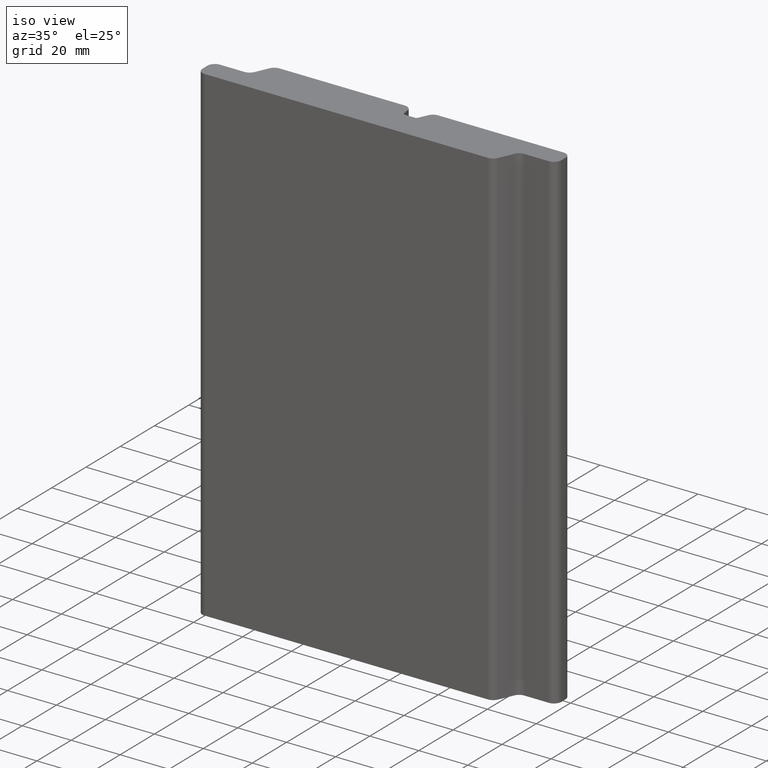
[diagram: clean part render]
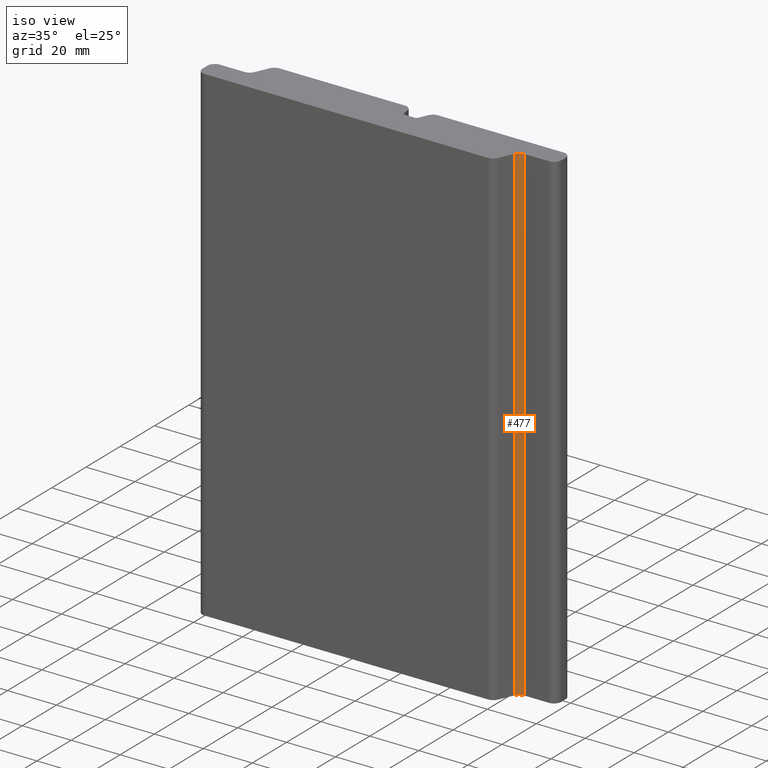
[diagram: same view with one face highlighted and labeled with its STEP entity id]
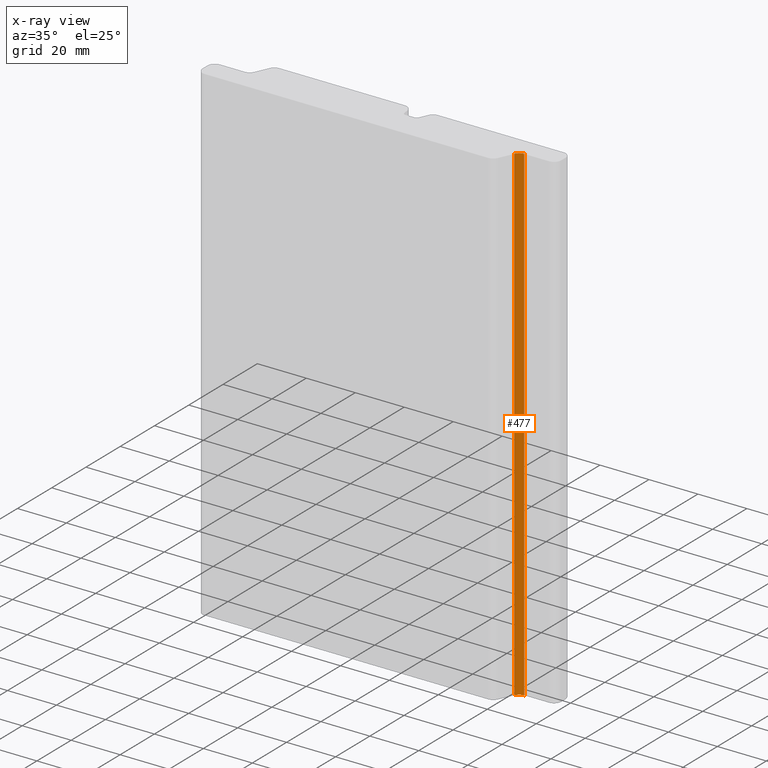
[diagram: x-ray of the same camera — body ghosted, the highlighted face saturated]
A machine part, iso view. The second image highlights one B-rep face of the part: STEP entity #477.
The next image is the same camera in x-ray: the body ghosted, the highlighted face saturated — about 0% of this face is hidden behind the body in this view.
In plain terms, the highlighted cylindrical surface (edge-blend (fillet) strip) has radius 3 mm, axis along (0, 0, 1).
Its self-contained STEP definition (entity closure, byte-faithful):
#29=FACE_OUTER_BOUND('',#55,.T.);
#55=EDGE_LOOP('',(#321,#322,#323,#324));
#81=LINE('',#723,#129);
#82=LINE('',#726,#130);
#129=VECTOR('',#573,10.);
#130=VECTOR('',#576,10.);
#177=CIRCLE('',#518,2.99999999999913);
#178=CIRCLE('',#519,2.99999999999913);
#201=VERTEX_POINT('',#719);
#202=VERTEX_POINT('',#720);
#203=VERTEX_POINT('',#722);
#204=VERTEX_POINT('',#724);
#249=EDGE_CURVE('',#201,#202,#177,.T.);
#250=EDGE_CURVE('',#201,#203,#81,.T.);
#251=EDGE_CURVE('',#204,#203,#178,.T.);
#252=EDGE_CURVE('',#202,#204,#82,.T.);
#321=ORIENTED_EDGE('',*,*,#249,.F.);
#322=ORIENTED_EDGE('',*,*,#250,.T.);
#323=ORIENTED_EDGE('',*,*,#251,.F.);
#324=ORIENTED_EDGE('',*,*,#252,.F.);
#465=CYLINDRICAL_SURFACE('',#517,2.99999999999913);
#477=ADVANCED_FACE('',(#29),#465,.F.);
#517=AXIS2_PLACEMENT_3D('',#718,#569,#570);
#518=AXIS2_PLACEMENT_3D('',#721,#571,#572);
#519=AXIS2_PLACEMENT_3D('',#725,#574,#575);
#569=DIRECTION('center_axis',(0.,0.,1.));
#570=DIRECTION('ref_axis',(0.,1.,0.));
#571=DIRECTION('center_axis',(0.,0.,1.));
#572=DIRECTION('ref_axis',(0.,1.,0.));
#573=DIRECTION('',(0.,0.,1.));
#574=DIRECTION('center_axis',(0.,0.,-1.));
#575=DIRECTION('ref_axis',(0.,1.,0.));
#576=DIRECTION('',(0.,0.,1.));
#718=CARTESIAN_POINT('Origin',(48.4448883355121,6.50000000000087,0.));
#719=CARTESIAN_POINT('',(48.4448883355121,9.5,0.));
#720=CARTESIAN_POINT('',(45.7042519625851,7.72020992922793,0.));
#721=CARTESIAN_POINT('Origin',(48.4448883355121,6.50000000000087,0.));
#722=CARTESIAN_POINT('',(48.4448883355121,9.5,200.));
#723=CARTESIAN_POINT('',(48.4448883355121,9.5,0.));
#724=CARTESIAN_POINT('',(45.7042519625851,7.72020992922793,200.));
#725=CARTESIAN_POINT('Origin',(48.4448883355121,6.50000000000087,200.));
#726=CARTESIAN_POINT('',(45.7042519625851,7.72020992922793,0.));